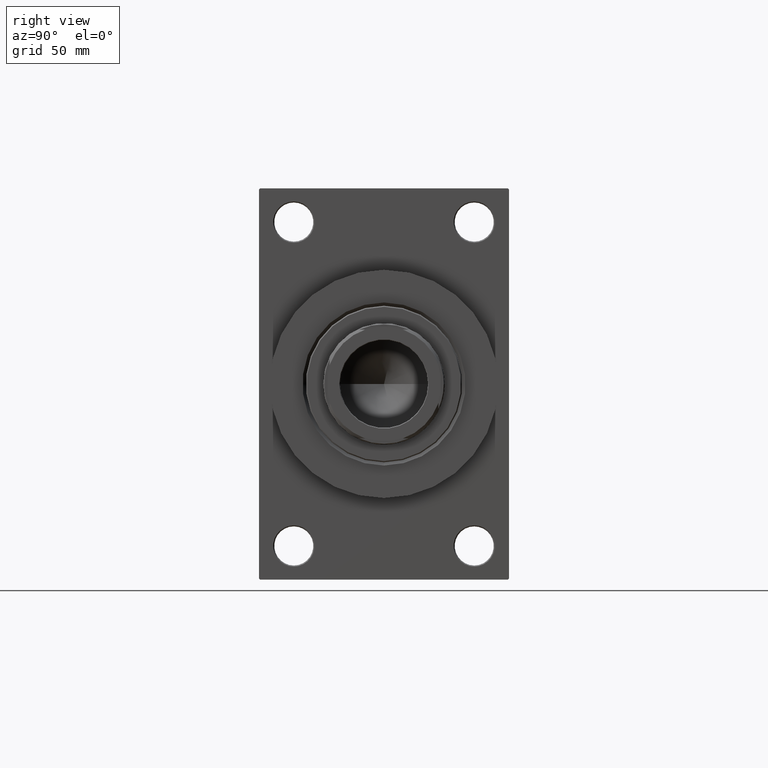
[diagram: clean part render]
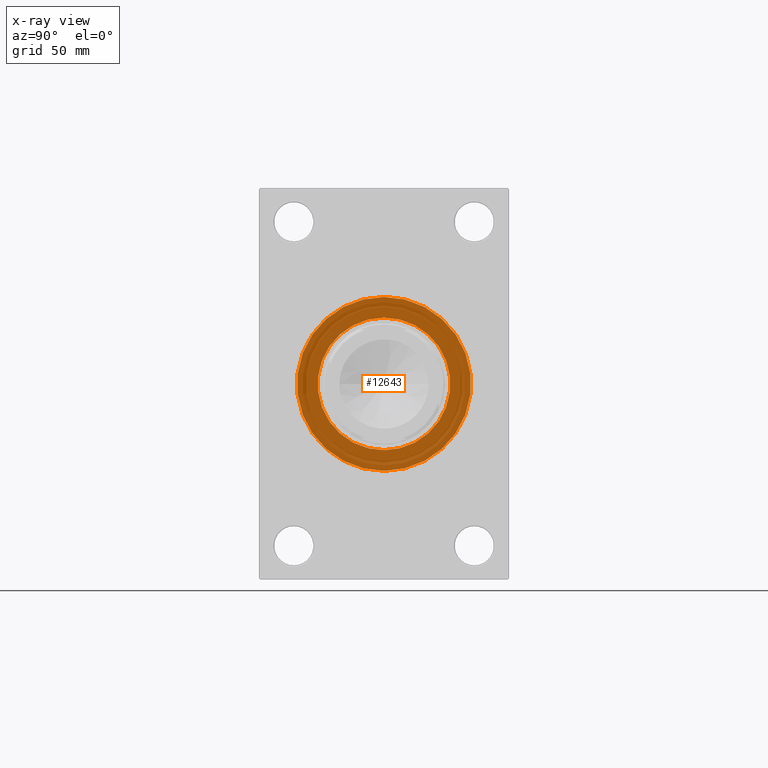
[diagram: x-ray — body ghosted, one internal face saturated and labeled with its STEP entity id]
A machine part, right view, then the same camera in x-ray: the body is ghosted and one INTERNAL B-rep face — a face not visible from any outside direction — is saturated and labeled: STEP entity #12643.
In plain terms, the highlighted planar face has unit normal (-1, 0, 0).
Its self-contained STEP definition (entity closure, byte-faithful):
#1116 = CARTESIAN_POINT ( 'NONE',  ( 140.0000000000000000, 0.000000000000000000, 0.000000000000000000 ) ) ;
#1281 = EDGE_CURVE ( 'NONE', #26255, #19559, #18731, .T. ) ;
#2270 = EDGE_LOOP ( 'NONE', ( #12382, #46340 ) ) ;
#4047 = VERTEX_POINT ( 'NONE', #41682 ) ;
#4301 = DIRECTION ( 'NONE',  ( 0.000000000000000000, 0.000000000000000000, 1.000000000000000000 ) ) ;
#5212 = DIRECTION ( 'NONE',  ( 1.000000000000000000, 0.000000000000000000, 0.000000000000000000 ) ) ;
#6506 = FACE_BOUND ( 'NONE', #46050, .T. ) ;
#7050 = AXIS2_PLACEMENT_3D ( 'NONE', #17331, #39986, #32024 ) ;
#7562 = CARTESIAN_POINT ( 'NONE',  ( 140.0000000000000000, 2.296501982624201990E-15, -40.00000000000000000 ) ) ;
#9354 = CIRCLE ( 'NONE', #7050, 40.00000000000000000 ) ;
#9713 = AXIS2_PLACEMENT_3D ( 'NONE', #21001, #42941, #42456 ) ;
#12382 = ORIENTED_EDGE ( 'NONE', *, *, #1281, .F. ) ;
#12643 = ADVANCED_FACE ( 'NONE', ( #6506, #28233 ), #13998, .T. ) ;
#13998 = PLANE ( 'NONE',  #9713 ) ;
#15857 = DIRECTION ( 'NONE',  ( -1.000000000000000000, 0.000000000000000000, -0.000000000000000000 ) ) ;
#16208 = EDGE_CURVE ( 'NONE', #23841, #4047, #47585, .T. ) ;
#17331 = CARTESIAN_POINT ( 'NONE',  ( 140.0000000000000000, -2.602085213965210642E-15, 0.000000000000000000 ) ) ;
#18731 = CIRCLE ( 'NONE', #45666, 40.00000000000000000 ) ;
#19559 = VERTEX_POINT ( 'NONE', #7562 ) ;
#19800 = EDGE_CURVE ( 'NONE', #4047, #23841, #46028, .T. ) ;
#21001 = CARTESIAN_POINT ( 'NONE',  ( 140.0000000000000000, 0.000000000000000000, 0.000000000000000000 ) ) ;
#23841 = VERTEX_POINT ( 'NONE', #27984 ) ;
#25947 = ORIENTED_EDGE ( 'NONE', *, *, #19800, .F. ) ;
#26255 = VERTEX_POINT ( 'NONE', #40707 ) ;
#27984 = CARTESIAN_POINT ( 'NONE',  ( 140.0000000000000000, 0.000000000000000000, -30.50000000000000000 ) ) ;
#28233 = FACE_OUTER_BOUND ( 'NONE', #2270, .T. ) ;
#30344 = DIRECTION ( 'NONE',  ( -1.000000000000000000, 0.000000000000000000, -0.000000000000000000 ) ) ;
#32024 = DIRECTION ( 'NONE',  ( 0.000000000000000000, 0.000000000000000000, -1.000000000000000000 ) ) ;
#34414 = CARTESIAN_POINT ( 'NONE',  ( 140.0000000000000000, -2.602085213965210642E-15, 0.000000000000000000 ) ) ;
#35257 = ORIENTED_EDGE ( 'NONE', *, *, #16208, .F. ) ;
#39986 = DIRECTION ( 'NONE',  ( 1.000000000000000000, 0.000000000000000000, 0.000000000000000000 ) ) ;
#40707 = CARTESIAN_POINT ( 'NONE',  ( 140.0000000000000000, -2.602085213965210642E-15, 40.00000000000000000 ) ) ;
#41682 = CARTESIAN_POINT ( 'NONE',  ( 140.0000000000000000, 3.735172737399426752E-15, 30.50000000000000000 ) ) ;
#41874 = DIRECTION ( 'NONE',  ( 0.000000000000000000, 0.000000000000000000, -1.000000000000000000 ) ) ;
#42288 = AXIS2_PLACEMENT_3D ( 'NONE', #44587, #30344, #4301 ) ;
#42357 = DIRECTION ( 'NONE',  ( 0.000000000000000000, 0.000000000000000000, 1.000000000000000000 ) ) ;
#42456 = DIRECTION ( 'NONE',  ( -0.000000000000000000, 0.000000000000000000, 1.000000000000000000 ) ) ;
#42941 = DIRECTION ( 'NONE',  ( -1.000000000000000000, 0.000000000000000000, -0.000000000000000000 ) ) ;
#44587 = CARTESIAN_POINT ( 'NONE',  ( 140.0000000000000000, 0.000000000000000000, 0.000000000000000000 ) ) ;
#45666 = AXIS2_PLACEMENT_3D ( 'NONE', #34414, #5212, #41874 ) ;
#45931 = EDGE_CURVE ( 'NONE', #19559, #26255, #9354, .T. ) ;
#46028 = CIRCLE ( 'NONE', #42288, 30.50000000000000000 ) ;
#46050 = EDGE_LOOP ( 'NONE', ( #35257, #25947 ) ) ;
#46340 = ORIENTED_EDGE ( 'NONE', *, *, #45931, .F. ) ;
#46792 = AXIS2_PLACEMENT_3D ( 'NONE', #1116, #15857, #42357 ) ;
#47585 = CIRCLE ( 'NONE', #46792, 30.50000000000000000 ) ;